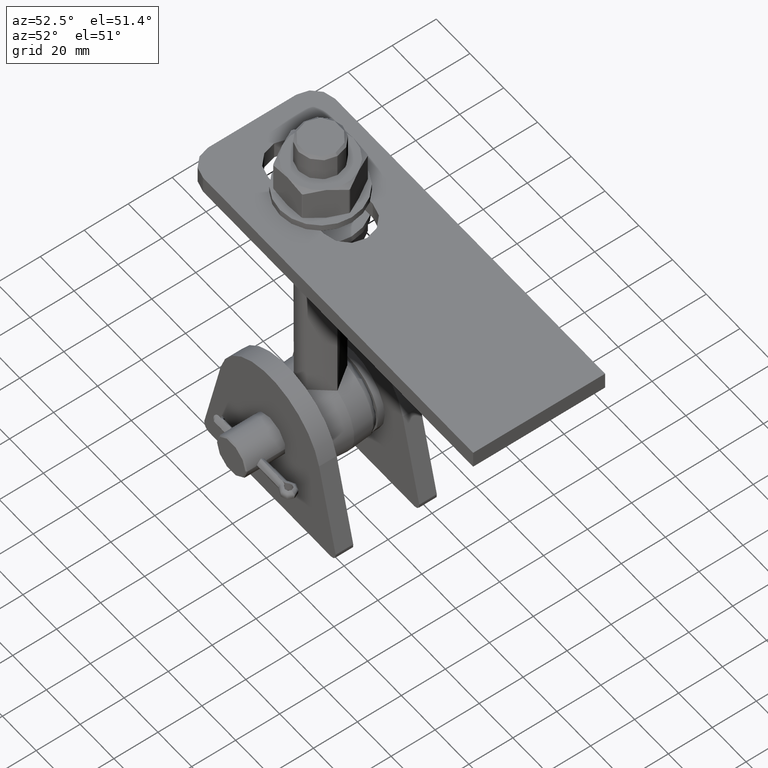
[diagram: clean part render]
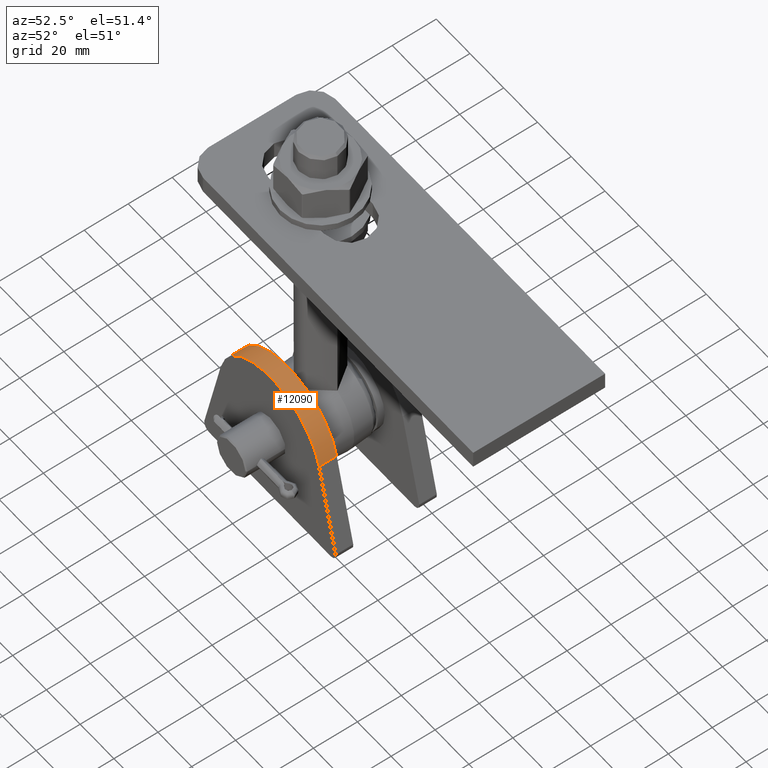
[diagram: same view with one face highlighted and labeled with its STEP entity id]
A machine part, auxiliary view. The second image highlights one B-rep face of the part: STEP entity #12090.
In plain terms, the highlighted cylindrical surface (partial cylindrical patch) has radius 29.915 mm, axis along (-0, -1, -0).
Its self-contained STEP definition (entity closure, byte-faithful):
#989 = DIRECTION ( 'NONE',  ( -0.000000000000000000, -1.000000000000000000, -0.000000000000000000 ) ) ;
#1478 = AXIS2_PLACEMENT_3D ( 'NONE', #2116, #13010, #14383 ) ;
#1975 = CARTESIAN_POINT ( 'NONE',  ( 0.000000000000000000, 4.000000000000000000, 38.08503215567574784 ) ) ;
#2116 = CARTESIAN_POINT ( 'NONE',  ( 0.000000000000000000, 4.000000000000000000, 38.08503215567574784 ) ) ;
#2643 = DIRECTION ( 'NONE',  ( -0.000000000000000000, -1.000000000000000000, -0.000000000000000000 ) ) ;
#3440 = FACE_OUTER_BOUND ( 'NONE', #10913, .T. ) ;
#4417 = VERTEX_POINT ( 'NONE', #11745 ) ;
#4472 = CYLINDRICAL_SURFACE ( 'NONE', #1478, 29.91496784432426637 ) ;
#5227 = VERTEX_POINT ( 'NONE', #7409 ) ;
#5723 = CARTESIAN_POINT ( 'NONE',  ( 0.000000000000000000, -4.000000000000000000, 38.08503215567574784 ) ) ;
#6249 = DIRECTION ( 'NONE',  ( 0.000000000000000000, 1.000000000000000000, 0.000000000000000000 ) ) ;
#6430 = DIRECTION ( 'NONE',  ( 0.000000000000000000, 0.000000000000000000, 1.000000000000000000 ) ) ;
#6454 = CARTESIAN_POINT ( 'NONE',  ( -29.10478518798784009, 4.000000000000000000, 45.00000000000000000 ) ) ;
#7409 = CARTESIAN_POINT ( 'NONE',  ( 29.10478518798784009, 4.000000000000000000, 45.00000000000000000 ) ) ;
#8082 = EDGE_CURVE ( 'NONE', #12442, #4417, #11044, .T. ) ;
#8395 = EDGE_CURVE ( 'NONE', #4417, #12853, #14277, .T. ) ;
#8474 = AXIS2_PLACEMENT_3D ( 'NONE', #1975, #6249, #6430 ) ;
#8603 = EDGE_CURVE ( 'NONE', #12442, #5227, #11067, .T. ) ;
#9400 = ORIENTED_EDGE ( 'NONE', *, *, #8603, .F. ) ;
#9843 = ORIENTED_EDGE ( 'NONE', *, *, #8395, .T. ) ;
#9878 = DIRECTION ( 'NONE',  ( 0.000000000000000000, 1.000000000000000000, 0.000000000000000000 ) ) ;
#9964 = AXIS2_PLACEMENT_3D ( 'NONE', #5723, #9878, #12634 ) ;
#10432 = VECTOR ( 'NONE', #2643, 1000.000000000000000 ) ;
#10731 = ORIENTED_EDGE ( 'NONE', *, *, #8082, .T. ) ;
#10913 = EDGE_LOOP ( 'NONE', ( #9843, #12244, #9400, #10731 ) ) ;
#11044 = LINE ( 'NONE', #6454, #12518 ) ;
#11067 = CIRCLE ( 'NONE', #8474, 29.91496784432426992 ) ;
#11745 = CARTESIAN_POINT ( 'NONE',  ( -29.10478518798784009, -4.000000000000000000, 45.00000000000000000 ) ) ;
#12090 = ADVANCED_FACE ( 'NONE', ( #3440 ), #4472, .T. ) ;
#12244 = ORIENTED_EDGE ( 'NONE', *, *, #16498, .F. ) ;
#12442 = VERTEX_POINT ( 'NONE', #17419 ) ;
#12518 = VECTOR ( 'NONE', #989, 1000.000000000000000 ) ;
#12634 = DIRECTION ( 'NONE',  ( 0.000000000000000000, 0.000000000000000000, 1.000000000000000000 ) ) ;
#12853 = VERTEX_POINT ( 'NONE', #14536 ) ;
#13010 = DIRECTION ( 'NONE',  ( -0.000000000000000000, -1.000000000000000000, -0.000000000000000000 ) ) ;
#14277 = CIRCLE ( 'NONE', #9964, 29.91496784432426992 ) ;
#14383 = DIRECTION ( 'NONE',  ( 0.000000000000000000, 0.000000000000000000, -1.000000000000000000 ) ) ;
#14536 = CARTESIAN_POINT ( 'NONE',  ( 29.10478518798784009, -4.000000000000000000, 45.00000000000000000 ) ) ;
#16498 = EDGE_CURVE ( 'NONE', #5227, #12853, #16575, .T. ) ;
#16575 = LINE ( 'NONE', #17584, #10432 ) ;
#17419 = CARTESIAN_POINT ( 'NONE',  ( -29.10478518798784009, 4.000000000000000000, 45.00000000000000000 ) ) ;
#17584 = CARTESIAN_POINT ( 'NONE',  ( 29.10478518798784009, 4.000000000000000000, 45.00000000000000000 ) ) ;